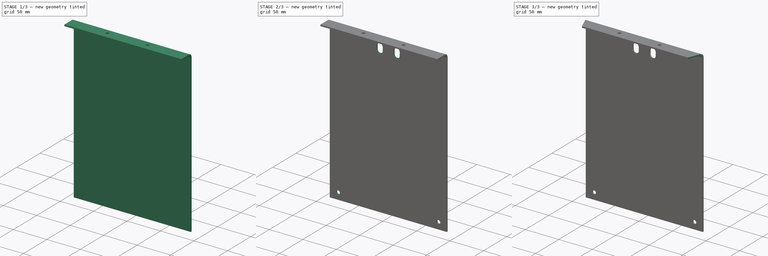
[diagram: build sequence overview — one tinted view per stage of 3, left to right]
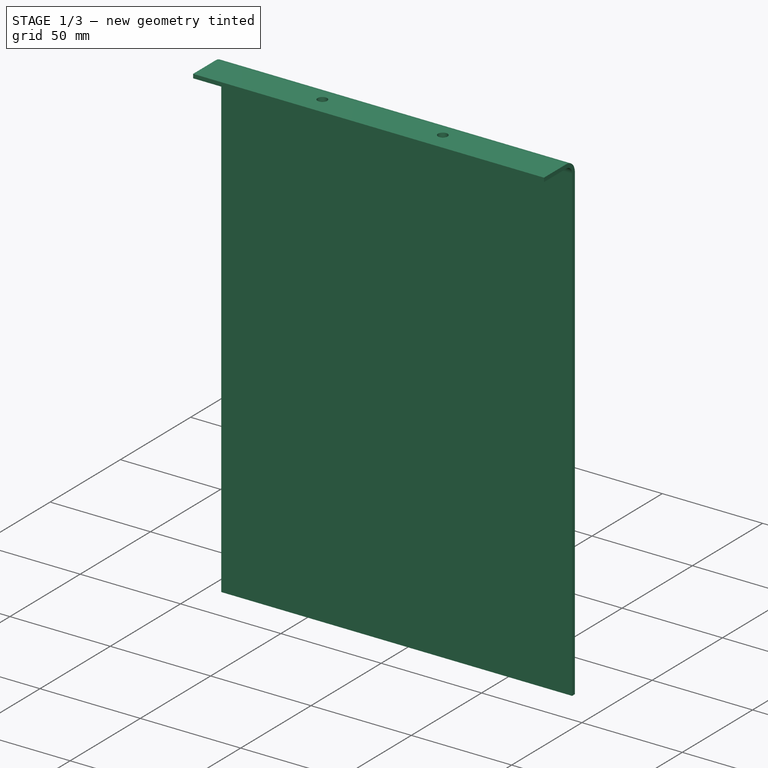
[diagram: stage 1 of 3 — iso view after this stage's code; geometry added in this stage tinted green]
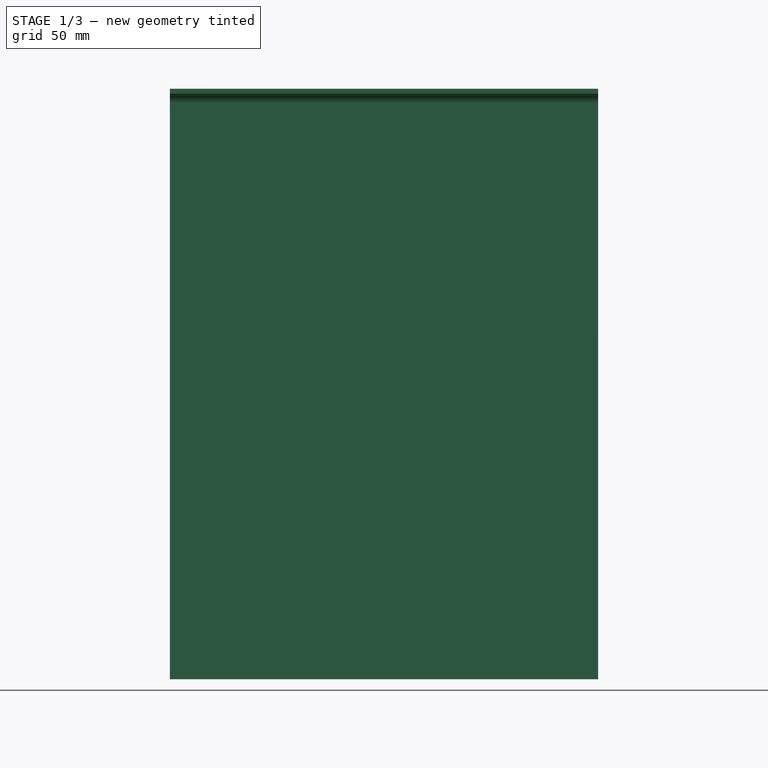
[diagram: stage 1 of 3 — front view after this stage's code; geometry added in this stage tinted green]
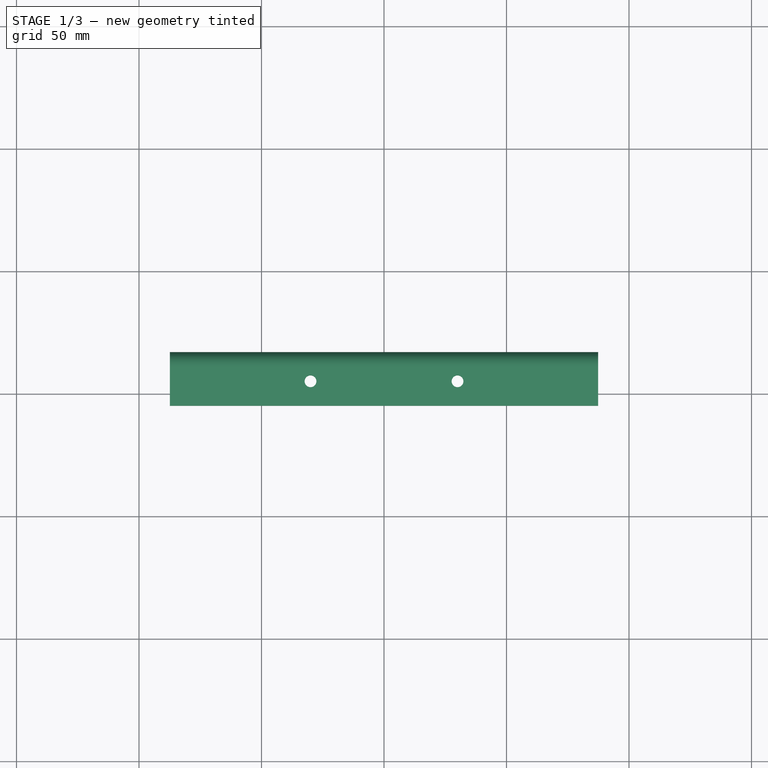
[diagram: stage 1 of 3 — top view after this stage's code; geometry added in this stage tinted green]
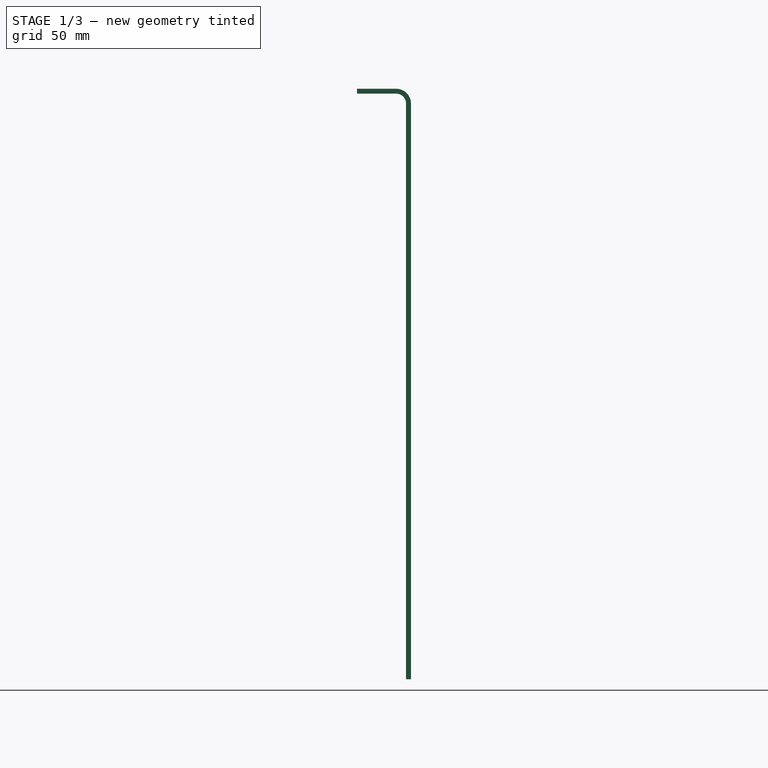
[diagram: stage 1 of 3 — right view after this stage's code; geometry added in this stage tinted green]
FCSTD DOCUMENT  (FreeCAD 1.0R39319 (Git))
Label: OCT-UFPNL-BA
License: All rights reserved
LicenseURL: https://en.wikipedia.org/wiki/All_rights_reserved
objects: Sketcher::SketchObject×5, PartDesign::Plane×4, PartDesign::Hole×2, PartDesign::Pocket×2, App::Link×1, PartDesign::FeaturePython×1, PartDesign::Mirrored×1, PartDesign::Line×1, PartDesign::Body×1
note: 32 computed .brp shape members not serialized (recipe doc carries the construction recipe); baked Part::Feature solids carry a one-line shape summary decoded from their .brp
EXTERNAL_REF file=../master.FCStd obj=Spreadsheet

FEATURE [App::Link] Link  label="dims"
  LinkedObject = -> <external ../master.FCStd>#Spreadsheet
FEATURE [PartDesign::Plane] DatumPlane  label="inner face XY"
  AttachmentOffset = pos=(0,0,239) rot=(0,0,1;0rad)
  AttachmentSupport = -> [XY_Plane]
  Length = 60
  MapMode = 5
  Placement = pos=(0,0,239) rot=(0,0,1;0rad)
  ResizeMode = 0
  Width = 60
  expr: .AttachmentOffset.Base.z = <<dims>>.hUpPanel
FEATURE [PartDesign::Plane] DatumPlane001  label="inner face XZ"
  AttachmentOffset = pos=(0,0,211) rot=(0,0,1;0rad)
  AttachmentSupport = -> [XZ_Plane]
  Length = 60
  MapMode = 5
  Placement = pos=(0,211,-4.69e-14) rot=(0,0.707107,0.707107;3.14159rad)
  ResizeMode = 0
  Width = 60
  expr: .AttachmentOffset.Base.z = <<dims>>.iwFurnace / 2
FEATURE [Sketcher::SketchObject] Sketch
  ArcFitTolerance = 1e-06
  AttachmentSupport = -> [YZ_Plane]
  ExternalGeometry = -> [DatumPlane,DatumPlane001]
  FullyConstrained = true
  MakeInternals = false
  MapMode = 5
  Placement = pos=(0,0,0) rot=(0.57735,0.57735,0.57735;2.0944rad)
  sketch-geometry (2):
    g0: LineSegment StartX=191 StartY=239 StartZ=0 EndX=211 EndY=239 EndZ=0
    g1: LineSegment StartX=211 StartY=239 StartZ=0 EndX=211 EndY=0 EndZ=0
  constraints (7):
    c: Horizontal(g0)
    c: Coincident(g0,g1)
    c: Vertical(g1)
    c: PointOnObject(g1,g-1)
    c: DistanceX(g0,g0) = 20
    c: PointOnObject(g0,g-3)
    c: PointOnObject(g1,g-4)
FEATURE [PartDesign::FeaturePython] BaseBend  # WARN: FeaturePython — macro-defined, semantics opaque (R4)
  BendSide = 1
  BendSketch = -> Sketch
  Length = 174.798
  MidPlane = true
  Radius = 4
  Reverse = false
  Suppressed = false
  Thickness = 2
  expr: Length = <<dims>>.opFurnace
  expr: Thickness = <<dims>>.tUpperPanel
FEATURE [PartDesign::Plane] DatumPlane002  label="top plane"
  AttachmentOffset = pos=(0,0,2) rot=(0,0,1;0rad)
  AttachmentSupport = -> [DatumPlane]
  Length = 60
  MapMode = 2
  Placement = pos=(0,0,241) rot=(0,0,1;0rad)
  ResizeMode = 0
  Width = 60
  expr: .AttachmentOffset.Base.z = <<dims>>.tUpperPanel
FEATURE [Sketcher::SketchObject] Sketch001
  ArcFitTolerance = 1e-06
  AttachmentSupport = -> [DatumPlane002]
  ExternalGeometry = -> [DatumPlane001]
  FullyConstrained = true
  MakeInternals = false
  MapMode = 5
  Placement = pos=(0,0,241) rot=(0,0,1;0rad)
  sketch-geometry (3):
    g0: Circle CenterX=-30 CenterY=201 CenterZ=0 NormalX=0 NormalY=0 NormalZ=1 AngleXU=0 Radius=3
    g1: LineSegment [constr] StartX=-30 StartY=201 StartZ=0 EndX=30 EndY=201 EndZ=0
    g2: Circle CenterX=30 CenterY=201 CenterZ=0 NormalX=0 NormalY=0 NormalZ=1 AngleXU=0 Radius=3
  constraints (7):
    c: Diameter(g0) = 6
    c: Coincident(g1,g0)
    c: Coincident(g2,g1)
    c: Equal(g2,g0)
    c: Symmetric(g0,g1,g-2)
    c: Distance(g0,g-3) = 10
    c: DistanceX(g1,g1) = 60
FEATURE [PartDesign::Hole] Hole  label="top mount hole"
  BaseFeature = -> BaseBend
  CustomThreadClearance = 0
  Depth = 25
  DepthType = 0
  Diameter = 4.8
  DrillForDepth = false
  DrillPoint = 1
  DrillPointAngle = 118
  HoleCutCountersinkAngle = 90
  HoleCutCustomValues = false
  HoleCutDepth = 0
  HoleCutDiameter = 4.6
  HoleCutType = 0
  ModelThread = false
  Profile = -> Sketch001
  Refine = true
  Suppressed = false
  Tapered = false
  TaperedAngle = 90
  ThreadClass = 0
  ThreadDepth = 25
  ThreadDepthType = 0
  ThreadDirection = 0
  ThreadFit = 2
  ThreadSize = 11
  ThreadType = 1
  Threaded = false
  UseCustomThreadClearance = false
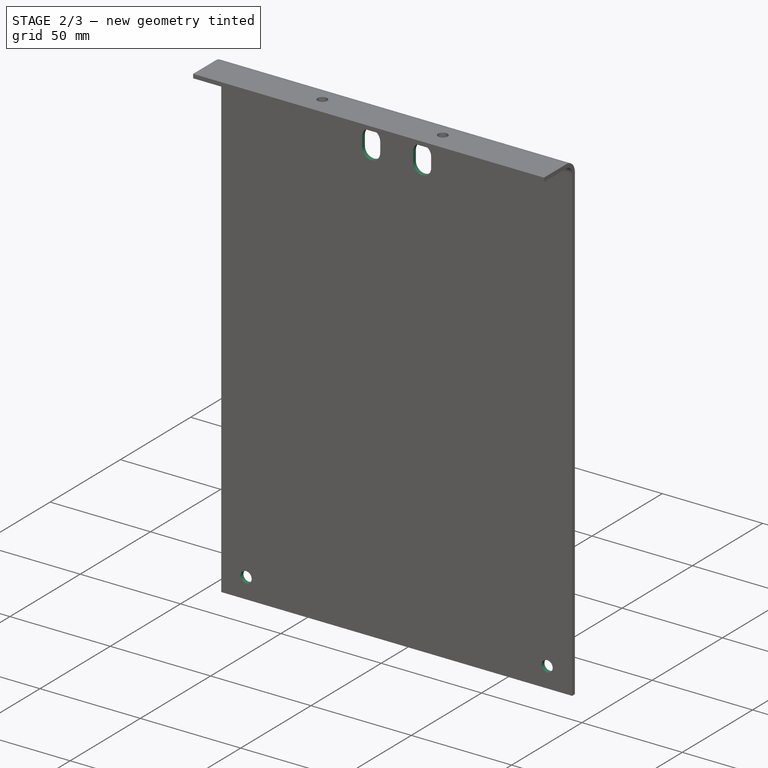
[diagram: stage 2 of 3 — iso view after this stage's code; geometry added in this stage tinted green]
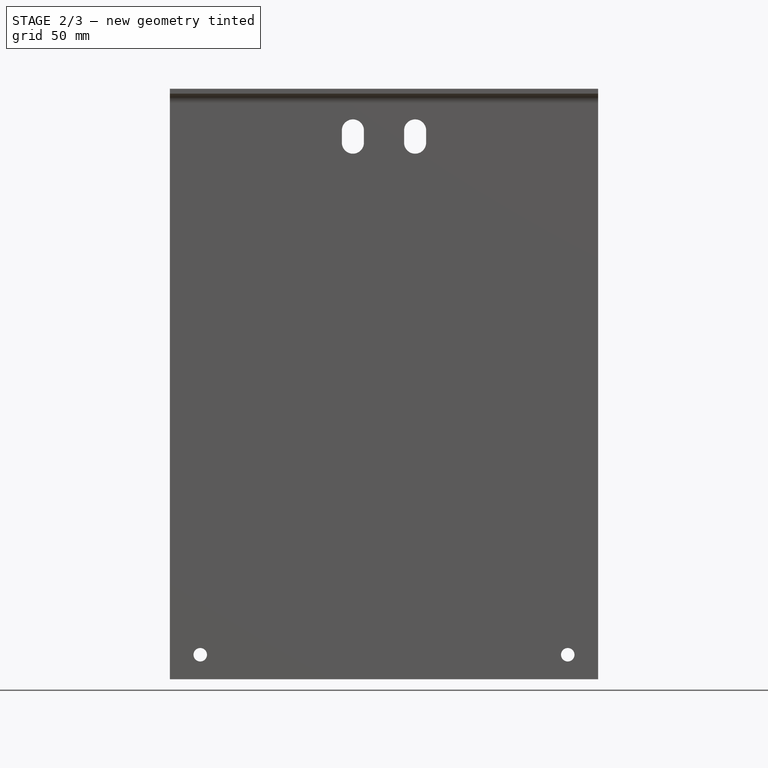
[diagram: stage 2 of 3 — front view after this stage's code; geometry added in this stage tinted green]
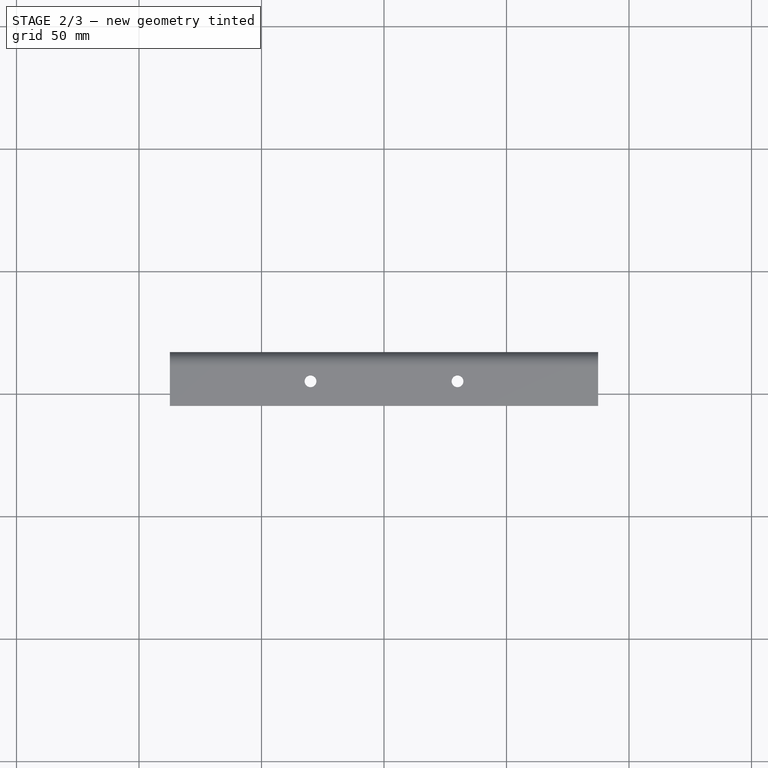
[diagram: stage 2 of 3 — top view after this stage's code; geometry added in this stage tinted green]
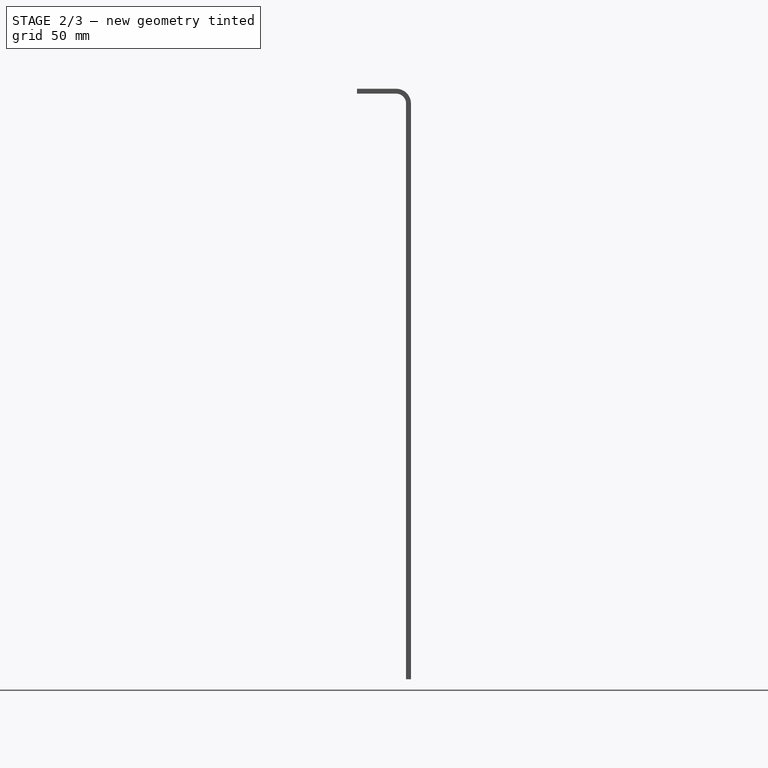
[diagram: stage 2 of 3 — right view after this stage's code; geometry added in this stage tinted green]
FEATURE [Sketcher::SketchObject] Sketch002
  ArcFitTolerance = 1e-06
  AttachmentSupport = -> [DatumPlane002]
  FullyConstrained = true
  MakeInternals = false
  MapMode = 5
  Placement = pos=(0,0,241) rot=(0,0,1;0rad)
  expr: Constraints[25] = <<dims>>.iwFurnace + 2 * <<dims>>.tUpperPanel
  sketch-geometry (12):
    g0: LineSegment [constr] StartX=-88.2275 StartY=213 StartZ=0 EndX=-213 EndY=88.2275 EndZ=0
    g1: LineSegment [constr] StartX=-213 StartY=88.2275 StartZ=0 EndX=-213 EndY=-88.2275 EndZ=0
    g2: LineSegment [constr] StartX=-213 StartY=-88.2275 StartZ=0 EndX=-88.2275 EndY=-213 EndZ=0
    g3: LineSegment [constr] StartX=-88.2275 StartY=-213 StartZ=0 EndX=88.2275 EndY=-213 EndZ=0
    g4: LineSegment [constr] StartX=88.2275 StartY=-213 StartZ=0 EndX=213 EndY=-88.2275 EndZ=0
    g5: LineSegment [constr] StartX=213 StartY=-88.2275 StartZ=0 EndX=213 EndY=88.2275 EndZ=0
    g6: LineSegment [constr] StartX=213 StartY=88.2275 StartZ=0 EndX=88.2275 EndY=213 EndZ=0
    g7: LineSegment [constr] StartX=88.2275 StartY=213 StartZ=0 EndX=-88.2275 EndY=213 EndZ=0
    g8: Circle [constr] CenterX=0 CenterY=0 CenterZ=0 NormalX=0 NormalY=0 NormalZ=1 AngleXU=0 Radius=230.55
    g9: LineSegment StartX=-88.2275 StartY=213 StartZ=0 EndX=0 EndY=0 EndZ=0
    g10: LineSegment StartX=0 StartY=0 StartZ=0 EndX=-88.2275 EndY=193 EndZ=0
    g11: LineSegment StartX=-88.2275 StartY=193 StartZ=0 EndX=-88.2275 EndY=213 EndZ=0
  constraints (27):
    c: Coincident(g0,g1)
    c: Coincident(g1,g2)
    c: Coincident(g2,g3)
    c: Coincident(g3,g4)
    c: Coincident(g4,g5)
    c: Coincident(g5,g6)
    c: Coincident(g6,g7)
    c: Coincident(g7,g0)
    c: Equal(g0, g1-g7) x7
    c: PointOnObject(g0,g8)
    c: PointOnObject(g1,g8)
    c: PointOnObject(g2,g8)
    c: PointOnObject(g3,g8)
    c: PointOnObject(g4,g8)
    c: PointOnObject(g5,g8)
    c: PointOnObject(g6,g8)
    c: PointOnObject(g7,g8)
    c: Coincident(g8,g-1)
    c: Horizontal(g7)
    c: DistanceY(g2,g0) = 426
    c: Coincident(g0,g9)
    c: Coincident(g9,g8)
    c: Coincident(g9,g10)
    c: Coincident(g10,g11)
    c: Coincident(g11,g9)
    c: DistanceY(g11,g11) = 20
    c: Vertical(g11)
FEATURE [Sketcher::SketchObject] Sketch003
  ArcFitTolerance = 1e-06
  AttachmentSupport = -> [DatumPlane001]
  FullyConstrained = true
  MakeInternals = false
  MapMode = 5
  Placement = pos=(0,211,-4.69e-14) rot=(0,0.707107,0.707107;3.14159rad)
  sketch-geometry (2):
    g0: Circle CenterX=75 CenterY=10 CenterZ=0 NormalX=0 NormalY=0 NormalZ=1 AngleXU=0 Radius=2.5
    g1: Circle CenterX=-75 CenterY=10 CenterZ=0 NormalX=0 NormalY=0 NormalZ=1 AngleXU=0 Radius=2.5
  constraints (5):
    c: Symmetric(g0,g1,g-2)
    c: Equal(g0,g1)
    c: Diameter(g0) = 5
    c: Distance(g0,g-1) = 10
    c: DistanceX(g1,g0) = 150
FEATURE [PartDesign::Hole] Hole001  label="frame mount holes"
  BaseFeature = -> Hole
  CustomThreadClearance = 0
  Depth = 603.028
  DepthType = 1
  Diameter = 5.5
  DrillForDepth = false
  DrillPoint = 1
  DrillPointAngle = 118
  HoleCutCountersinkAngle = 90
  HoleCutCustomValues = false
  HoleCutDepth = 0
  HoleCutDiameter = 6.1
  HoleCutType = 0
  ModelThread = false
  Profile = -> Sketch003
  Refine = true
  Reversed = true
  Suppressed = false
  Tapered = false
  TaperedAngle = 90
  ThreadClass = 0
  ThreadDepth = 603.028
  ThreadDepthType = 0
  ThreadDirection = 0
  ThreadFit = 0
  ThreadSize = 13
  ThreadType = 1
  Threaded = false
  UseCustomThreadClearance = false
FEATURE [PartDesign::Plane] DatumPlane003  label="outer face XZ"
  AttachmentOffset = pos=(0,0,2) rot=(0,0,1;0rad)
  AttachmentSupport = -> [DatumPlane001]
  Length = 60
  MapMode = 5
  Placement = pos=(0,213,-4.73e-14) rot=(0,0.707107,0.707107;3.14159rad)
  ResizeMode = 0
  Width = 60
  expr: .AttachmentOffset.Base.z = <<dims>>.tUpperPanel
FEATURE [Sketcher::SketchObject] Sketch004
  ArcFitTolerance = 1e-06
  AttachmentSupport = -> [DatumPlane003]
  ExternalGeometry = -> [DatumPlane002]
  FullyConstrained = true
  MakeInternals = false
  MapMode = 5
  Placement = pos=(0,213,-4.73e-14) rot=(0,0.707107,0.707107;3.14159rad)
  expr: Constraints[5] = 14 - <<dims>>.tTop
  sketch-geometry (26):
    g0: Circle [constr] CenterX=-12.7 CenterY=221.5 CenterZ=0 NormalX=0 NormalY=0 NormalZ=1 AngleXU=0 Radius=4.5
    g1: Circle [constr] CenterX=-38.1 CenterY=230 CenterZ=0 NormalX=0 NormalY=0 NormalZ=1 AngleXU=0 Radius=4.5
    g2: Circle [constr] CenterX=38.1 CenterY=230 CenterZ=0 NormalX=0 NormalY=0 NormalZ=1 AngleXU=0 Radius=4.5
    g3: Circle [constr] CenterX=12.7 CenterY=221.5 CenterZ=0 NormalX=0 NormalY=0 NormalZ=1 AngleXU=0 Radius=4.5
    g4: ArcOfCircle [constr] CenterX=-38.1 CenterY=232.5 CenterZ=0 NormalX=0 NormalY=0 NormalZ=1 AngleXU=0 Radius=4.5 StartAngle=0 EndAngle=3.14159
    g5: ArcOfCircle [constr] CenterX=-38.1 CenterY=227.5 CenterZ=0 NormalX=0 NormalY=0 NormalZ=1 AngleXU=0 Radius=4.5 StartAngle=3.14159 EndAngle=6.28319
    g6: LineSegment [constr] StartX=-33.6 StartY=232.5 StartZ=0 EndX=-33.6 EndY=227.5 EndZ=0
    g7: LineSegment [constr] StartX=-42.6 StartY=232.5 StartZ=0 EndX=-42.6 EndY=227.5 EndZ=0
    g8: ArcOfCircle CenterX=-12.7 CenterY=224 CenterZ=0 NormalX=0 NormalY=0 NormalZ=1 AngleXU=0 Radius=4.5 StartAngle=2.4e-15 EndAngle=3.14159
    g9: ArcOfCircle CenterX=-12.7 CenterY=219 CenterZ=0 NormalX=0 NormalY=0 NormalZ=1 AngleXU=0 Radius=4.5 StartAngle=3.14159 EndAngle=6.28319
    g10: LineSegment StartX=-8.2 StartY=224 StartZ=0 EndX=-8.2 EndY=219 EndZ=0
    g11: LineSegment StartX=-17.2 StartY=224 StartZ=0 EndX=-17.2 EndY=219 EndZ=0
    g12: ArcOfCircle CenterX=12.7 CenterY=224 CenterZ=0 NormalX=0 NormalY=0 NormalZ=1 AngleXU=0 Radius=4.5 StartAngle=2.3e-15 EndAngle=3.14159
    g13: ArcOfCircle CenterX=12.7 CenterY=219 CenterZ=0 NormalX=0 NormalY=0 NormalZ=1 AngleXU=0 Radius=4.5 StartAngle=3.14159 EndAngle=6.28319
    g14: LineSegment StartX=17.2 StartY=224 StartZ=0 EndX=17.2 EndY=219 EndZ=0
    g15: LineSegment StartX=8.2 StartY=224 StartZ=0 EndX=8.2 EndY=219 EndZ=0
    g16: ArcOfCircle [constr] CenterX=38.1 CenterY=232.5 CenterZ=0 NormalX=0 NormalY=0 NormalZ=1 AngleXU=0 Radius=4.5 StartAngle=1.8e-15 EndAngle=3.14159
    g17: ArcOfCircle [constr] CenterX=38.1 CenterY=227.5 CenterZ=0 NormalX=0 NormalY=0 NormalZ=1 AngleXU=0 Radius=4.5 StartAngle=3.14159 EndAngle=6.28319
    g18: LineSegment [constr] StartX=42.6 StartY=232.5 StartZ=0 EndX=42.6 EndY=227.5 EndZ=0
    g19: LineSegment [constr] StartX=33.6 StartY=232.5 StartZ=0 EndX=33.6 EndY=227.5 EndZ=0
    g20: LineSegment [constr] StartX=-38.1 StartY=230 StartZ=0 EndX=38.1 EndY=230 EndZ=0
    g21: LineSegment [constr] StartX=-12.7 StartY=221.5 StartZ=0 EndX=12.7 EndY=221.5 EndZ=0
    g22: LineSegment [constr] StartX=-38.1 StartY=232.5 StartZ=0 EndX=-38.1 EndY=230 EndZ=0
    g23: LineSegment [constr] StartX=-12.7 StartY=224 StartZ=0 EndX=-12.7 EndY=221.5 EndZ=0
    g24: LineSegment [constr] StartX=12.7 StartY=224 StartZ=0 EndX=12.7 EndY=221.5 EndZ=0
    g25: LineSegment [constr] StartX=38.1 StartY=232.5 StartZ=0 EndX=38.1 EndY=230 EndZ=0
  constraints (58):
    c: Equal(g0,g1)
    c: Equal(g1,g2)
    c: Equal(g2,g3)
    c: Symmetric(g1,g2,g-2)
    c: Symmetric(g0,g3,g-2)
    c: Distance(g1,g-3) = 11
    c: DistanceY(g0,g1) = 8.5
    c: DistanceX(g0,g3) = 25.4
    c: DistanceX(g1,g2) = 76.2
    c: Diameter(g2) = 9
    c: Tangent(g4,g6) = 1.5708
    c: Tangent(g4,g7) = -1.5708
    c: Tangent(g5,g6) = 1.5708
    c: Tangent(g5,g7) = -1.5708
    c: Equal(g4,g5)
    c: Tangent(g8,g10) = 1.5708
    c: Tangent(g8,g11) = -1.5708
    c: Tangent(g9,g10) = 1.5708
    c: Tangent(g9,g11) = -1.5708
    c: Equal(g8,g9)
    c: Tangent(g12,g14) = 1.5708
    c: Tangent(g12,g15) = -1.5708
    c: Tangent(g13,g14) = 1.5708
    c: Tangent(g13,g15) = -1.5708
    c: Equal(g12,g13)
    c: Tangent(g16,g18) = 1.5708
    c: Tangent(g16,g19) = -1.5708
    c: Tangent(g17,g18) = 1.5708
    c: Tangent(g17,g19) = -1.5708
    c: Equal(g16,g17)
    c: Equal(g16,g12)
    c: Equal(g12,g8)
    c: Equal(g8,g4)
    c: Radius(g4) = 4.5
    c: DistanceY(g7,g7) = 5
    c: Equal(g7,g11)
    c: Equal(g11,g15)
    c: Equal(g15,g19)
    c: Coincident(g20,g1)
    c: Coincident(g20,g2)
    c: Coincident(g21,g0)
    c: Coincident(g21,g3)
    c: Symmetric(g5,g4,g20)
    c: Symmetric(g9,g8,g21)
    c: Symmetric(g13,g12,g21)
    c: Symmetric(g17,g16,g20)
    c: Coincident(g22,g4)
    c: Coincident(g22,g1)
    c: Coincident(g23,g8)
    c: Coincident(g23,g0)
    c: Coincident(g24,g12)
    c: Coincident(g24,g3)
    c: Coincident(g25,g16)
    c: Coincident(g25,g2)
    c: Vertical(g25)
    c: Vertical(g24)
    c: Vertical(g23)
    c: Vertical(g22)
FEATURE [PartDesign::Pocket] Pocket001  label="hinge mount slots"
  BaseFeature = -> Hole001
  Direction = (0,-1,2e-16)
  Length = 5
  Length2 = 5
  Profile = -> Sketch004
  ReferenceAxis = -> Sketch004 [N_Axis]
  Refine = true
  Suppressed = false
  Type = 2
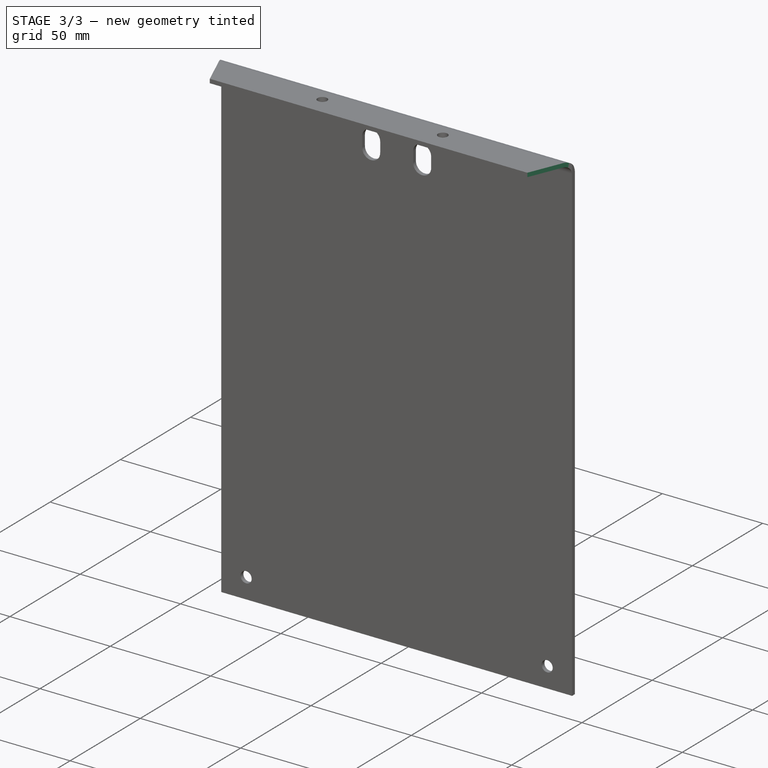
[diagram: stage 3 of 3 — iso view after this stage's code; geometry added in this stage tinted green]
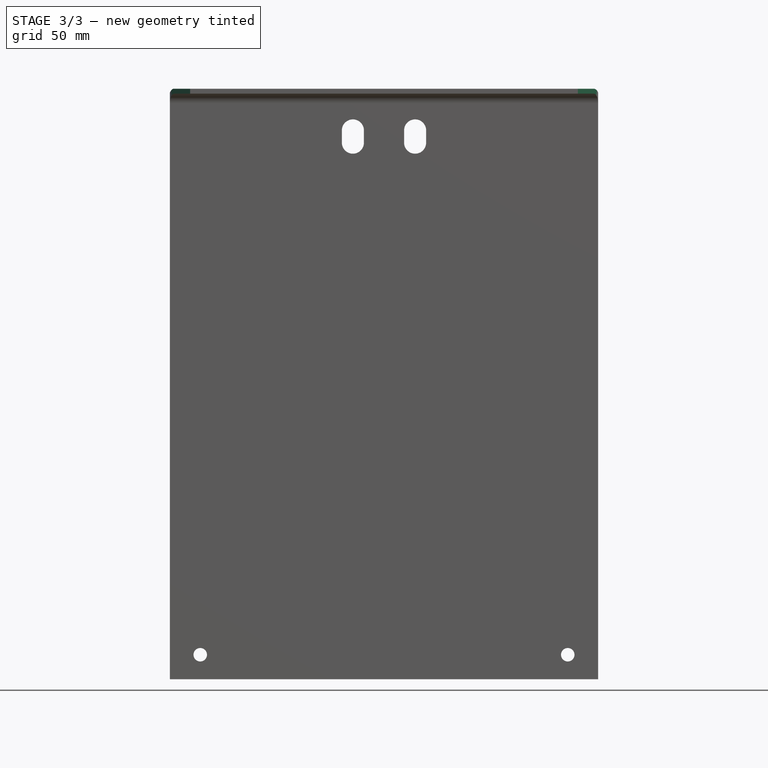
[diagram: stage 3 of 3 — front view after this stage's code; geometry added in this stage tinted green]
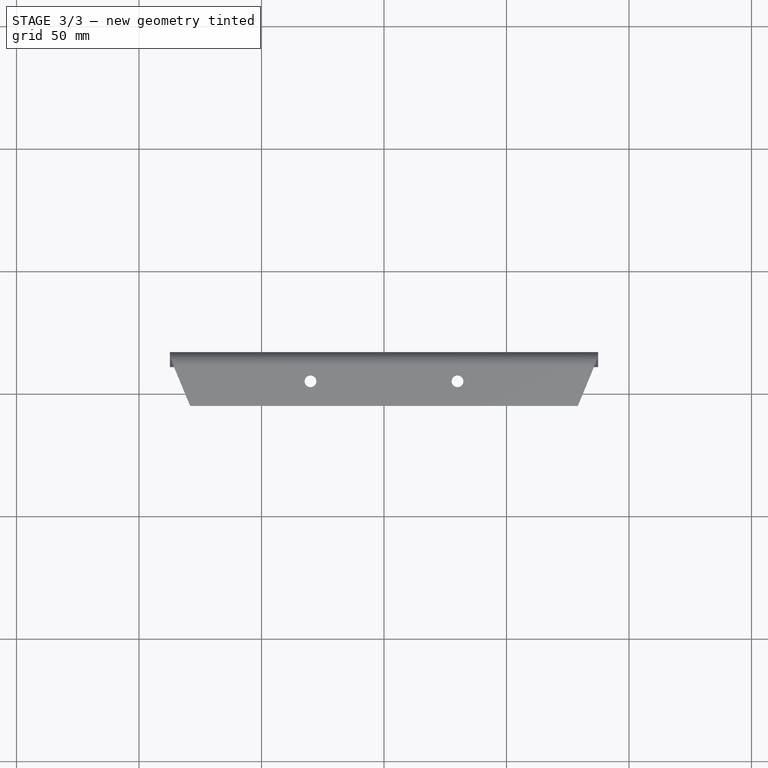
[diagram: stage 3 of 3 — top view after this stage's code; geometry added in this stage tinted green]
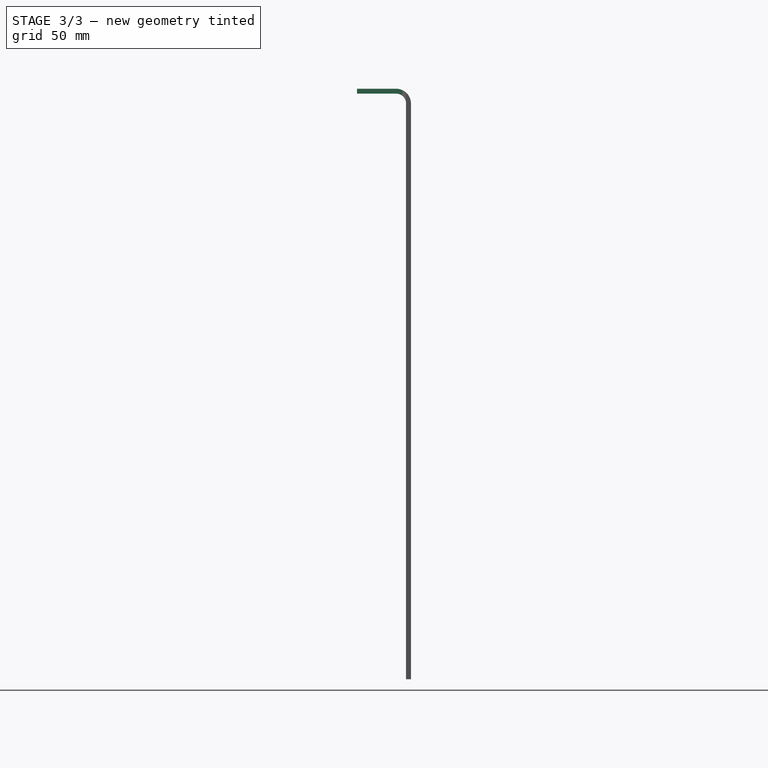
[diagram: stage 3 of 3 — right view after this stage's code; geometry added in this stage tinted green]
FEATURE [PartDesign::Pocket] Pocket
  BaseFeature = -> Pocket001
  Direction = (0,0,-1)
  Length = 5
  Length2 = 5
  Profile = -> Sketch002
  ReferenceAxis = -> Sketch002 [N_Axis]
  Refine = true
  Suppressed = false
  Type = 1
FEATURE [PartDesign::Mirrored] Mirrored
  BaseFeature = -> Pocket
  MirrorPlane = -> YZ_Plane
  Originals = -> [Pocket]
  Refine = true
  Suppressed = false
  TransformMode = 0
FEATURE [PartDesign::Line] DatumLine  label="hinge axis"
  AttacherType = Attacher::AttachEngineLine
  AttachmentOffset = pos=(0,0,213) rot=(0,0,1;0rad)
  AttachmentSupport = -> [Mirrored]
  Length = 20
  MapMode = 42
  Placement = pos=(-12.7,213,221.5) rot=(0,0.707107,0.707107;3.14159rad)
  ResizeMode = 0
FEATURE [PartDesign::Body] Body  label="hinge panel"
  AllowCompound = false
  Group = -> [Sketch,BaseBend,DatumPlane,DatumPlane001,DatumPlane002,Sketch001,Hole,Sketch002,Sketch003,Hole001,DatumPlane003,Sketch004,Pocket001,Pocket,Mirrored,DatumLine]
  Origin = -> Origin
  Tip = -> Mirrored
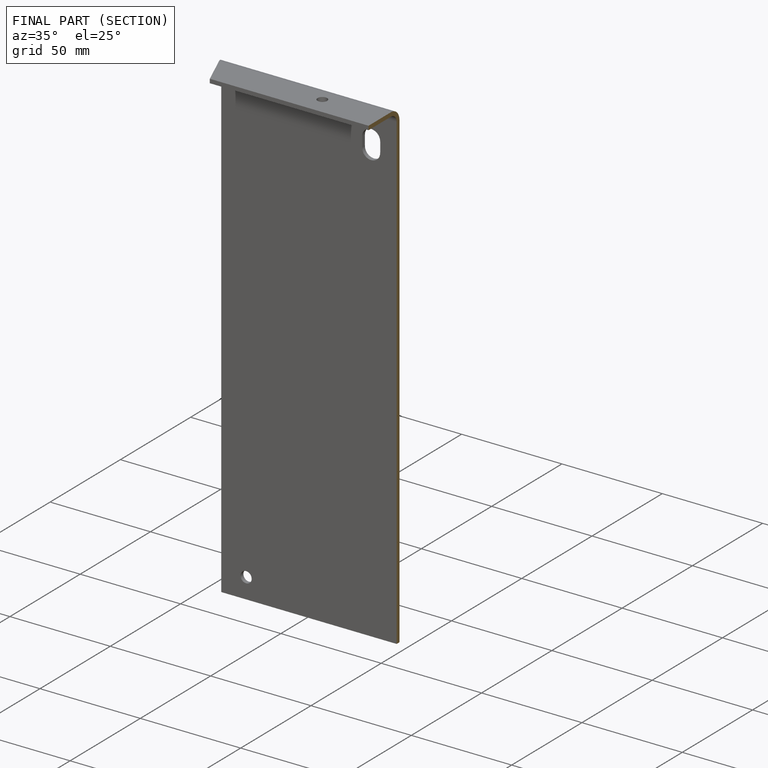
[diagram: finished part — half-section view (interior)]
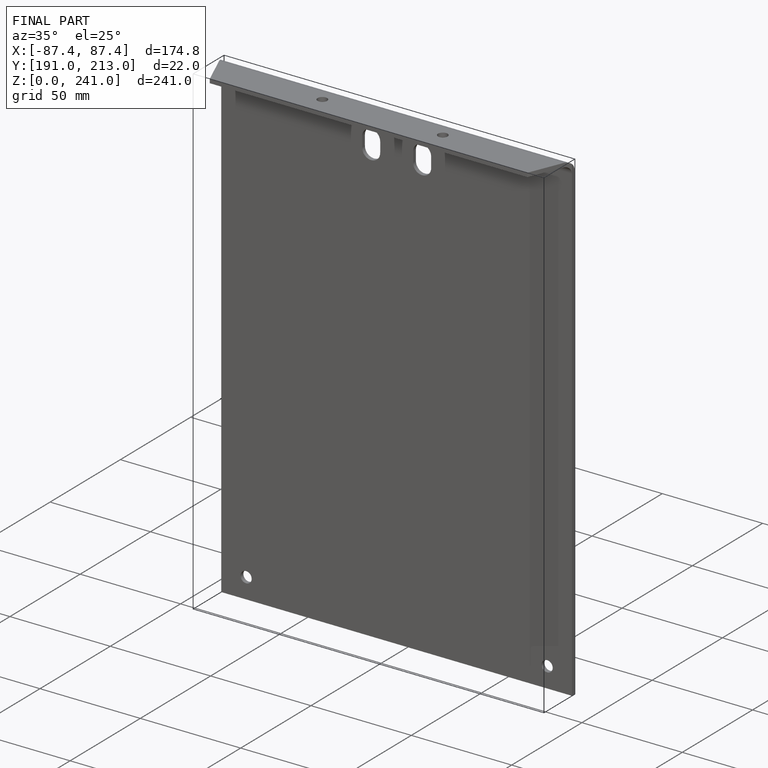
[diagram: finished part — iso view with bounding-box wireframe]
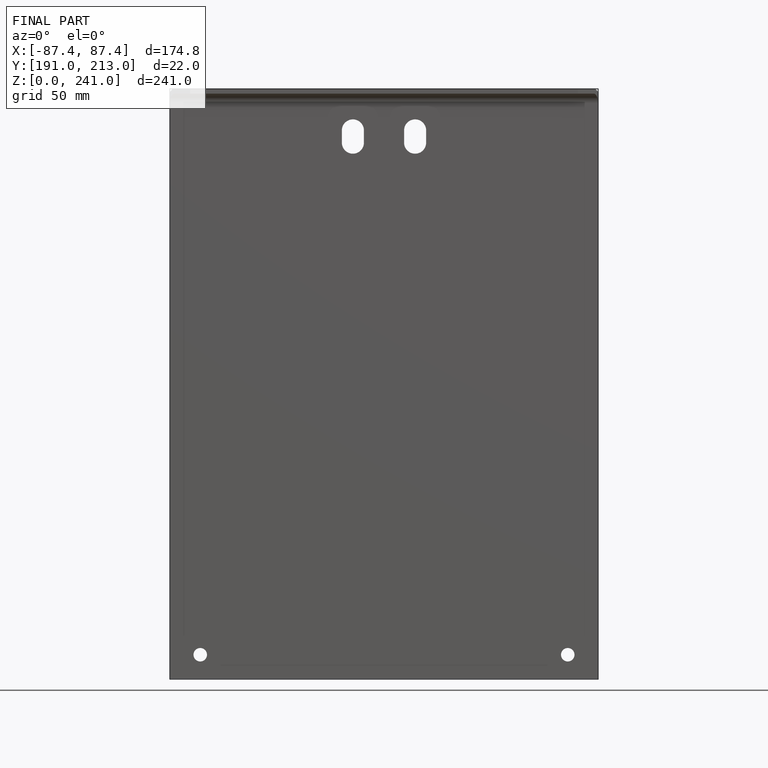
[diagram: finished part — front view with bounding-box wireframe]
